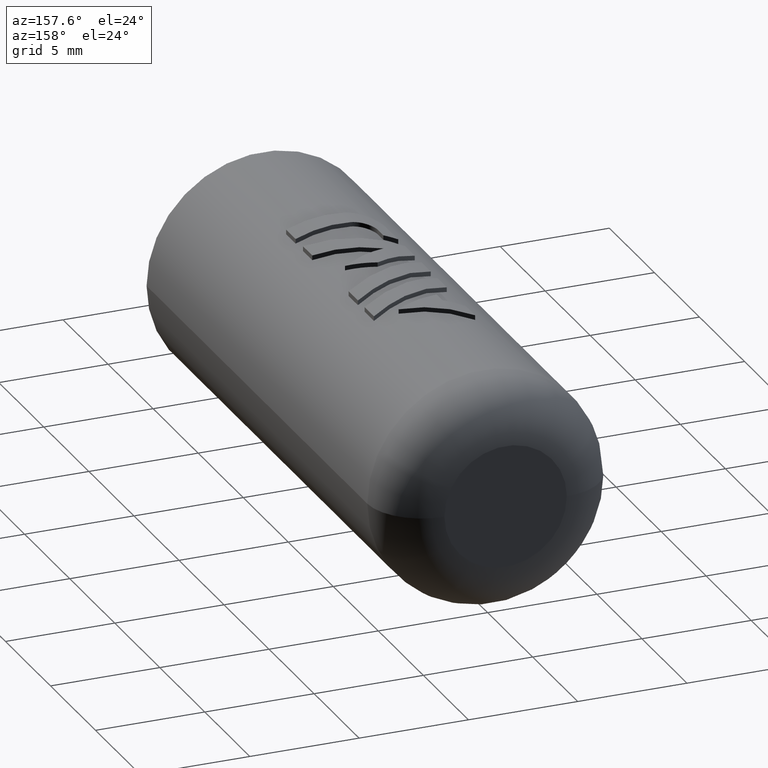
[diagram: clean part render]
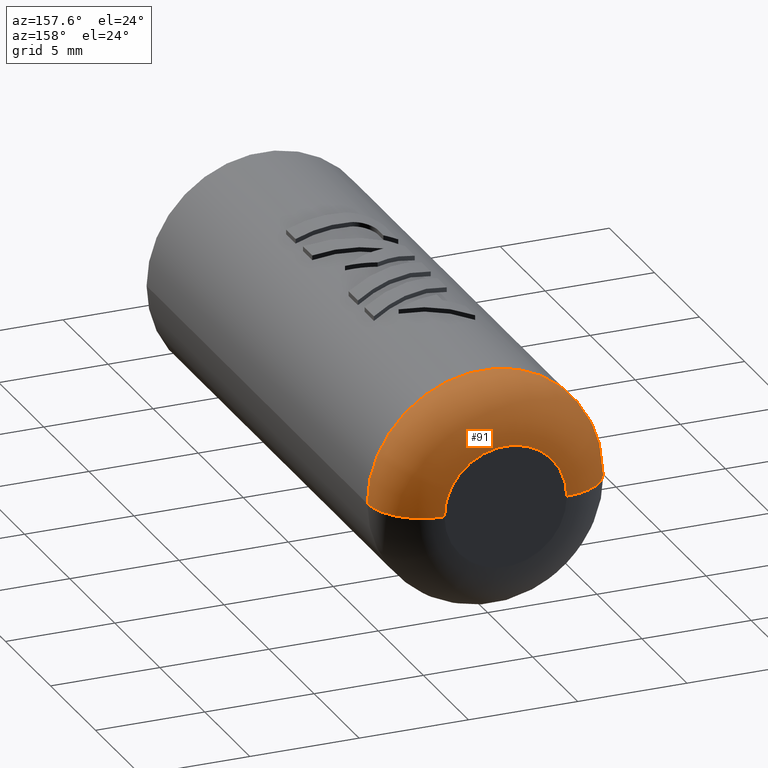
[diagram: same view with one face highlighted and labeled with its STEP entity id]
A machine part, auxiliary view. The second image highlights one B-rep face of the part: STEP entity #91.
In plain terms, the highlighted toroidal blend (fillet) surface has major radius 2.8 mm and minor (blend) radius 2.5 mm.
Its self-contained STEP definition (entity closure, byte-faithful):
#91=ADVANCED_FACE('',(#183),#184,.T.);
#183=FACE_OUTER_BOUND('',#2014,.T.);
#184=TOROIDAL_SURFACE('',#2015,2.8,2.5);
#2014=EDGE_LOOP('',(#2216,#2217,#2218,#2219));
#2015=AXIS2_PLACEMENT_3D('',#2220,#2221,#2222);
#2216=ORIENTED_EDGE('',*,*,#2866,.F.);
#2217=ORIENTED_EDGE('',*,*,#2867,.T.);
#2218=ORIENTED_EDGE('',*,*,#2868,.F.);
#2219=ORIENTED_EDGE('',*,*,#2869,.F.);
#2220=CARTESIAN_POINT('',(0.0,24.5,0.0));
#2221=DIRECTION('',(0.0,-1.0,0.0));
#2222=DIRECTION('',(1.0,0.0,-6.12323399573677E-17));
#2866=EDGE_CURVE('',#3092,#3093,#3094,.T.);
#2867=EDGE_CURVE('',#3092,#3095,#3096,.T.);
#2868=EDGE_CURVE('',#3097,#3095,#3098,.T.);
#2869=EDGE_CURVE('',#3093,#3097,#3099,.T.);
#3092=VERTEX_POINT('',#4298);
#3093=VERTEX_POINT('',#4299);
#3094=CIRCLE('',#4300,2.5);
#3095=VERTEX_POINT('',#4301);
#3096=CIRCLE('',#4302,2.8);
#3097=VERTEX_POINT('',#4303);
#3098=CIRCLE('',#4304,2.5);
#3099=CIRCLE('',#4305,5.3);
#4298=CARTESIAN_POINT('',(2.8,27.0,-1.7145055188063E-16));
#4299=CARTESIAN_POINT('',(5.3,24.5,-3.24531401774049E-16));
#4300=AXIS2_PLACEMENT_3D('',#4750,#4751,#4752);
#4301=CARTESIAN_POINT('',(-2.8,27.0,5.14351655641888E-16));
#4302=AXIS2_PLACEMENT_3D('',#4753,#4754,#4755);
#4303=CARTESIAN_POINT('',(-5.3,24.5,-3.24531401774048E-16));
#4304=AXIS2_PLACEMENT_3D('',#4756,#4757,#4758);
#4305=AXIS2_PLACEMENT_3D('',#4759,#4760,#4761);
#4750=CARTESIAN_POINT('',(2.8,24.5,-5.14351655641888E-16));
#4751=DIRECTION('',(-1.83697019872103E-16,-0.0,-1.0));
#4752=DIRECTION('',(1.0,0.0,-1.83697019872103E-16));
#4753=CARTESIAN_POINT('',(0.0,27.0,0.0));
#4754=DIRECTION('',(0.0,-1.0,0.0));
#4755=DIRECTION('',(1.0,0.0,-6.12323399573677E-17));
#4756=CARTESIAN_POINT('',(-2.8,24.5,5.14351655641888E-16));
#4757=DIRECTION('',(-1.83697019872103E-16,0.0,-1.0));
#4758=DIRECTION('',(-1.0,0.0,1.83697019872103E-16));
#4759=CARTESIAN_POINT('',(0.0,24.5,0.0));
#4760=DIRECTION('',(0.0,-1.0,0.0));
#4761=DIRECTION('',(1.0,0.0,-6.12323399573677E-17));